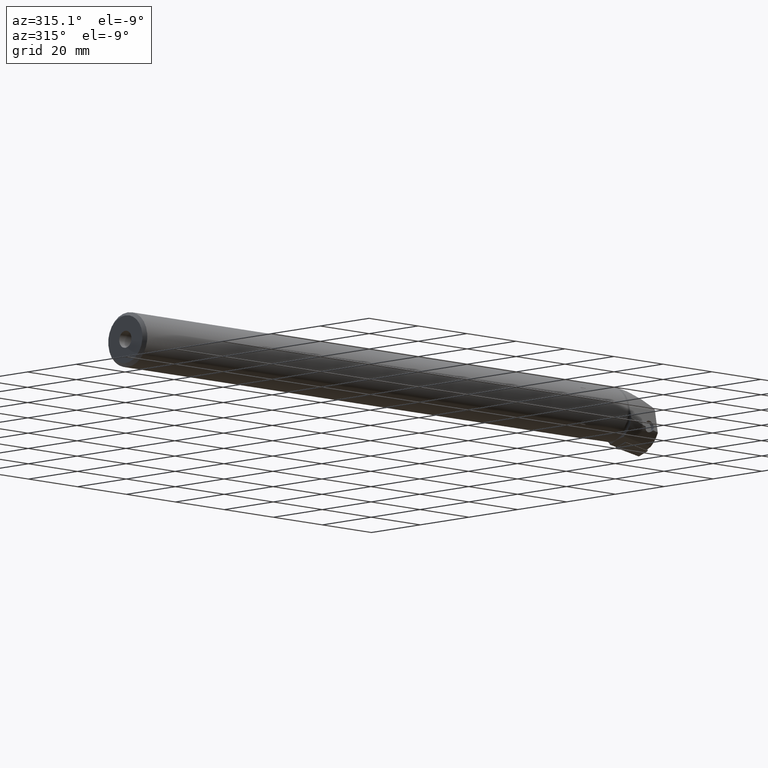
[diagram: clean part render]
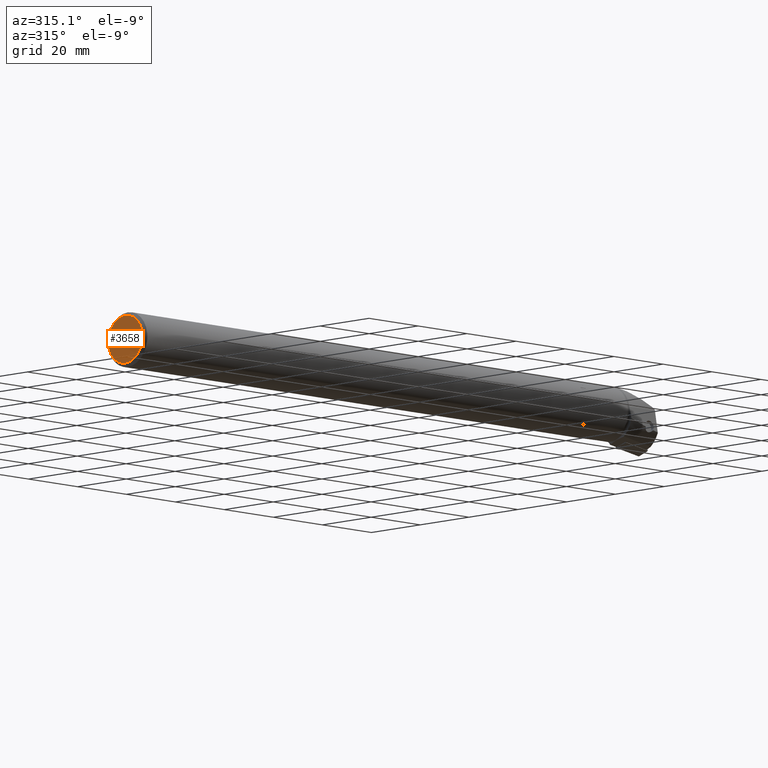
[diagram: same view with one face highlighted and labeled with its STEP entity id]
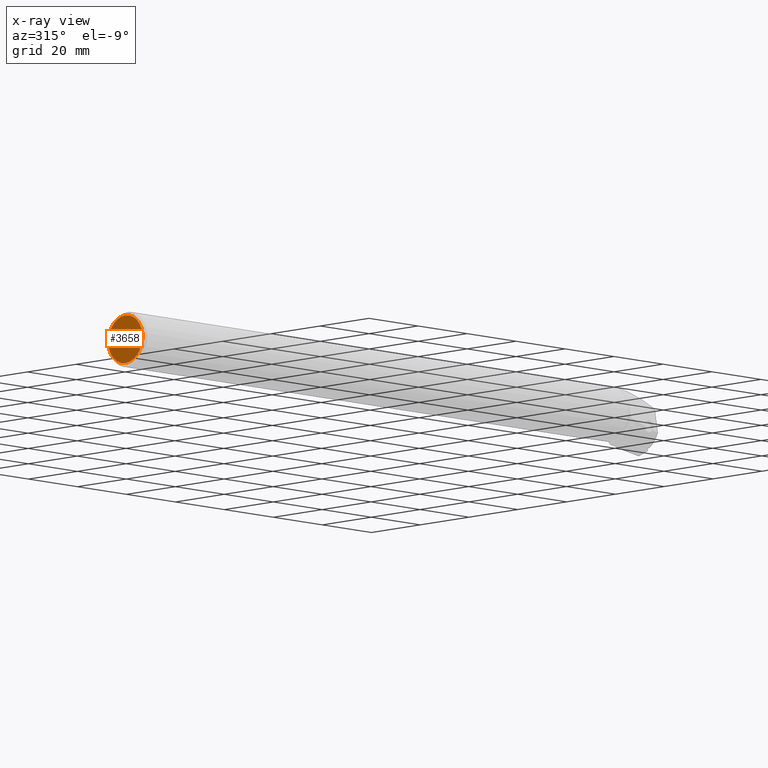
[diagram: x-ray of the same camera — body ghosted, the highlighted face saturated]
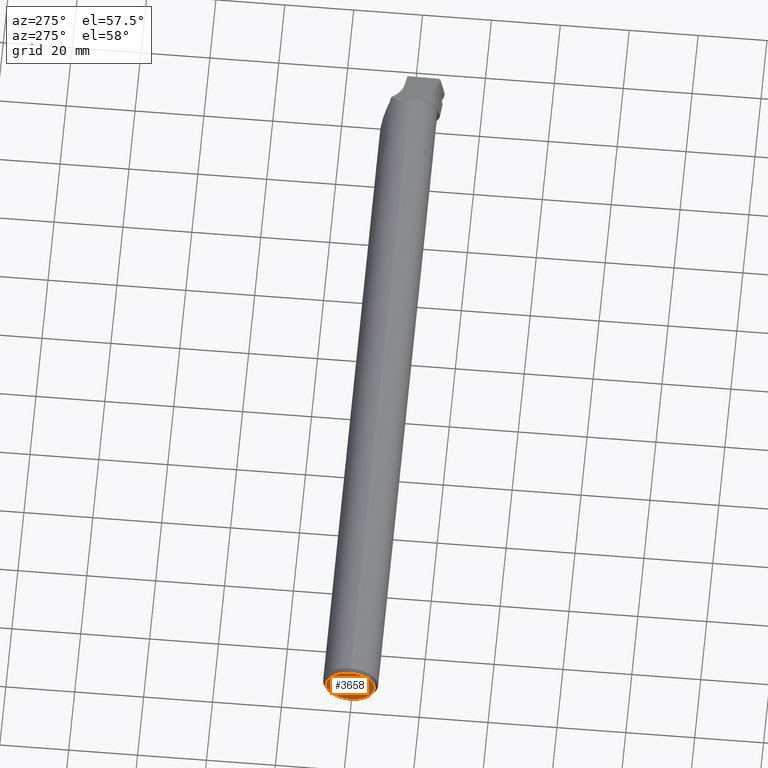
[diagram: same view with one face highlighted and labeled with its STEP entity id]
A machine part, auxiliary view. The second image highlights one B-rep face of the part: STEP entity #3658.
The next image is the same camera in x-ray: the body ghosted, the highlighted face saturated — about 0% of this face is hidden behind the body in this view.
A second angle (auxiliary view) of the same face is appended — the face is thin or edge-on in the first view.
In plain terms, the highlighted planar face has unit normal (1, 0, -0).
Its self-contained STEP definition (entity closure, byte-faithful):
#160 = ORIENTED_EDGE ( 'NONE', *, *, #3480, .T. ) ;
#182 = ORIENTED_EDGE ( 'NONE', *, *, #3496, .F. ) ;
#185 = ORIENTED_EDGE ( 'NONE', *, *, #3491, .T. ) ;
#192 = ORIENTED_EDGE ( 'NONE', *, *, #3478, .F. ) ;
#822 = CIRCLE ( 'NONE', #2535, 7.000000000000019500 ) ;
#847 = CIRCLE ( 'NONE', #2545, 7.000000000000019500 ) ;
#876 = CIRCLE ( 'NONE', #2532, 2.499999999999980000 ) ;
#877 = CIRCLE ( 'NONE', #2551, 2.499999999999980000 ) ;
#1514 = EDGE_LOOP ( 'NONE', ( #192, #182 ) ) ;
#1682 = EDGE_LOOP ( 'NONE', ( #185, #160 ) ) ;
#2532 = AXIS2_PLACEMENT_3D ( 'NONE', #4003, #4004, #4005 ) ;
#2535 = AXIS2_PLACEMENT_3D ( 'NONE', #4012, #4013, #4014 ) ;
#2545 = AXIS2_PLACEMENT_3D ( 'NONE', #4037, #4038, #4039 ) ;
#2551 = AXIS2_PLACEMENT_3D ( 'NONE', #4052, #4053, #4054 ) ;
#3478 = EDGE_CURVE ( 'NONE', #4304, #4237, #876, .T. ) ;
#3480 = EDGE_CURVE ( 'NONE', #4365, #4314, #822, .T. ) ;
#3491 = EDGE_CURVE ( 'NONE', #4314, #4365, #847, .T. ) ;
#3496 = EDGE_CURVE ( 'NONE', #4237, #4304, #877, .T. ) ;
#3658 = ADVANCED_FACE ( 'NONE', ( #4571, #4591 ), #5137, .F. ) ;
#4003 = CARTESIAN_POINT ( 'NONE',  ( -180.0000000000004300, -1.448115999829059000E-014, 1.035638689283376100E-015 ) ) ;
#4004 = DIRECTION ( 'NONE',  ( -1.000000000000000000, -1.081007496269136300E-016, 4.550406820893250800E-017 ) ) ;
#4005 = DIRECTION ( 'NONE',  ( 0.0000000000000000000, -5.551115123125832000E-017, 1.000000000000000000 ) ) ;
#4012 = CARTESIAN_POINT ( 'NONE',  ( -180.0000000000004300, -1.448115999829059000E-014, 1.035638689283376100E-015 ) ) ;
#4013 = DIRECTION ( 'NONE',  ( -1.000000000000000000, -1.081007496269136300E-016, 4.550406820893250800E-017 ) ) ;
#4014 = DIRECTION ( 'NONE',  ( 0.0000000000000000000, -5.551115123125772200E-017, 1.000000000000000000 ) ) ;
#4037 = CARTESIAN_POINT ( 'NONE',  ( -180.0000000000004300, -1.448115999829059000E-014, 1.035638689283376100E-015 ) ) ;
#4038 = DIRECTION ( 'NONE',  ( -1.000000000000000000, -1.081007496269136300E-016, 4.550406820893250800E-017 ) ) ;
#4039 = DIRECTION ( 'NONE',  ( 0.0000000000000000000, -5.551115123125772200E-017, 1.000000000000000000 ) ) ;
#4052 = CARTESIAN_POINT ( 'NONE',  ( -180.0000000000004300, -1.448115999829059000E-014, 1.035638689283376100E-015 ) ) ;
#4053 = DIRECTION ( 'NONE',  ( -1.000000000000000000, -1.081007496269136300E-016, 4.550406820893250800E-017 ) ) ;
#4054 = DIRECTION ( 'NONE',  ( 0.0000000000000000000, -5.551115123125832000E-017, 1.000000000000000000 ) ) ;
#4237 = VERTEX_POINT ( 'NONE', #5170 ) ;
#4304 = VERTEX_POINT ( 'NONE', #5209 ) ;
#4314 = VERTEX_POINT ( 'NONE', #5222 ) ;
#4365 = VERTEX_POINT ( 'NONE', #5242 ) ;
#4571 = FACE_BOUND ( 'NONE', #1514, .T. ) ;
#4591 = FACE_OUTER_BOUND ( 'NONE', #1682, .T. ) ;
#4997 = AXIS2_PLACEMENT_3D ( 'NONE', #5134, #5139, #5140 ) ;
#5134 = CARTESIAN_POINT ( 'NONE',  ( -180.0000000000004800, 2.499999999999964500, 2.223436853541234400E-014 ) ) ;
#5137 = PLANE ( 'NONE',  #4997 ) ;
#5139 = DIRECTION ( 'NONE',  ( 1.000000000000000000, 1.081007496269136300E-016, -8.617803217782845300E-017 ) ) ;
#5140 = DIRECTION ( 'NONE',  ( -8.617803217782845300E-017, 5.551115123125777800E-017, -1.000000000000000000 ) ) ;
#5170 = CARTESIAN_POINT ( 'NONE',  ( -180.0000000000004300, -2.811571477856866800E-014, -2.499999999999976900 ) ) ;
#5209 = CARTESIAN_POINT ( 'NONE',  ( -180.0000000000004300, -1.461993787636873500E-014, 2.499999999999980900 ) ) ;
#5222 = CARTESIAN_POINT ( 'NONE',  ( -180.0000000000004300, -1.121067185695301500E-014, -7.000000000000012400 ) ) ;
#5242 = CARTESIAN_POINT ( 'NONE',  ( -180.0000000000004300, -1.112485402606136400E-014, 7.000000000000014200 ) ) ;